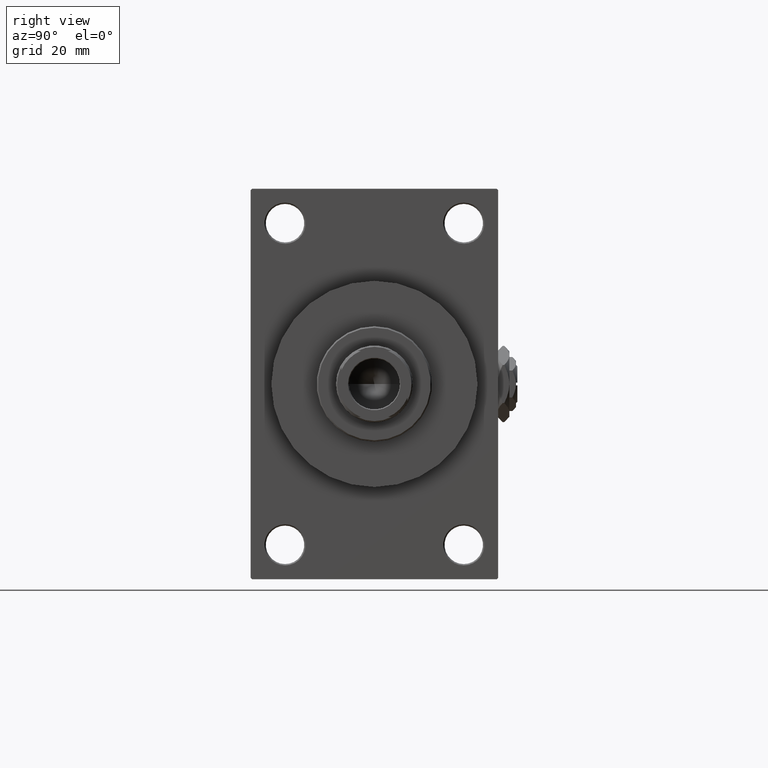
[diagram: clean part render]
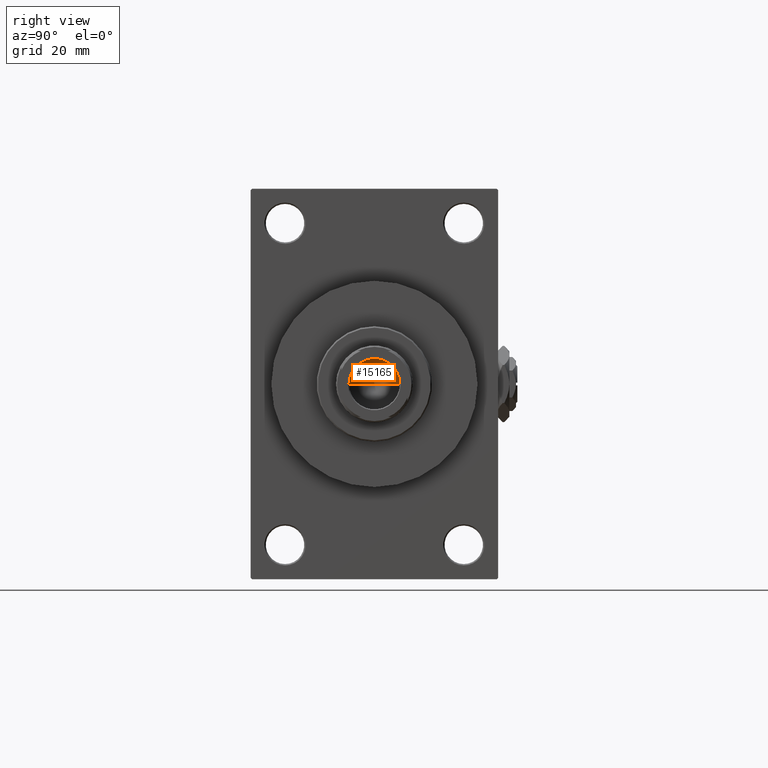
[diagram: same view with one face highlighted and labeled with its STEP entity id]
A machine part, right view. The second image highlights one B-rep face of the part: STEP entity #15165.
In plain terms, the highlighted conical surface has half-angle 59 deg.
Its self-contained STEP definition (entity closure, byte-faithful):
#222 = VERTEX_POINT ( 'NONE', #22467 ) ;
#363 = CARTESIAN_POINT ( 'NONE',  ( 0.000000000000000000, 0.000000000000000000, 114.9999999999999858 ) ) ;
#898 = VERTEX_POINT ( 'NONE', #43601 ) ;
#4234 = CIRCLE ( 'NONE', #14500, 9.249999999999992895 ) ;
#5000 = EDGE_LOOP ( 'NONE', ( #47064, #40143, #9550 ) ) ;
#6294 = LINE ( 'NONE', #8863, #27142 ) ;
#6365 = DIRECTION ( 'NONE',  ( -0.8571673007021117785, 1.049727191138617956E-16, 0.5150380749100550437 ) ) ;
#6706 = DIRECTION ( 'NONE',  ( -0.000000000000000000, -0.000000000000000000, 1.000000000000000000 ) ) ;
#8079 = DIRECTION ( 'NONE',  ( 1.000000000000000000, 0.000000000000000000, 0.000000000000000000 ) ) ;
#8863 = CARTESIAN_POINT ( 'NONE',  ( 9.249999999999992895, 0.000000000000000000, 114.9999999999999858 ) ) ;
#9550 = ORIENTED_EDGE ( 'NONE', *, *, #45149, .T. ) ;
#9577 = CARTESIAN_POINT ( 'NONE',  ( -9.769621978240258809E-15, 0.000000000000000000, 109.4420392739950501 ) ) ;
#14500 = AXIS2_PLACEMENT_3D ( 'NONE', #36889, #6706, #29883 ) ;
#15165 = ADVANCED_FACE ( 'NONE', ( #15576 ), #26911, .F. ) ;
#15576 = FACE_OUTER_BOUND ( 'NONE', #5000, .T. ) ;
#17660 = EDGE_CURVE ( 'NONE', #33815, #898, #25327, .T. ) ;
#19109 = VECTOR ( 'NONE', #6365, 1000.000000000000000 ) ;
#20559 = AXIS2_PLACEMENT_3D ( 'NONE', #363, #42485, #8079 ) ;
#22467 = CARTESIAN_POINT ( 'NONE',  ( 9.249999999999992895, 0.000000000000000000, 114.9999999999999858 ) ) ;
#24084 = DIRECTION ( 'NONE',  ( 0.8571673007021117785, 0.000000000000000000, 0.5150380749100550437 ) ) ;
#25327 = LINE ( 'NONE', #35804, #19109 ) ;
#26911 = CONICAL_SURFACE ( 'NONE', #20559, 9.249999999999992895, 1.029744258676653423 ) ;
#27142 = VECTOR ( 'NONE', #24084, 1000.000000000000000 ) ;
#29883 = DIRECTION ( 'NONE',  ( 1.000000000000000000, 0.000000000000000000, 0.000000000000000000 ) ) ;
#33815 = VERTEX_POINT ( 'NONE', #9577 ) ;
#35804 = CARTESIAN_POINT ( 'NONE',  ( -9.249999999999992895, 1.132798289211300712E-15, 114.9999999999999858 ) ) ;
#36889 = CARTESIAN_POINT ( 'NONE',  ( 0.000000000000000000, 0.000000000000000000, 114.9999999999999858 ) ) ;
#39526 = EDGE_CURVE ( 'NONE', #33815, #222, #6294, .T. ) ;
#40143 = ORIENTED_EDGE ( 'NONE', *, *, #17660, .T. ) ;
#42485 = DIRECTION ( 'NONE',  ( -0.000000000000000000, -0.000000000000000000, 1.000000000000000000 ) ) ;
#43601 = CARTESIAN_POINT ( 'NONE',  ( -9.249999999999992895, 1.132798289211300712E-15, 114.9999999999999858 ) ) ;
#45149 = EDGE_CURVE ( 'NONE', #898, #222, #4234, .T. ) ;
#47064 = ORIENTED_EDGE ( 'NONE', *, *, #39526, .F. ) ;